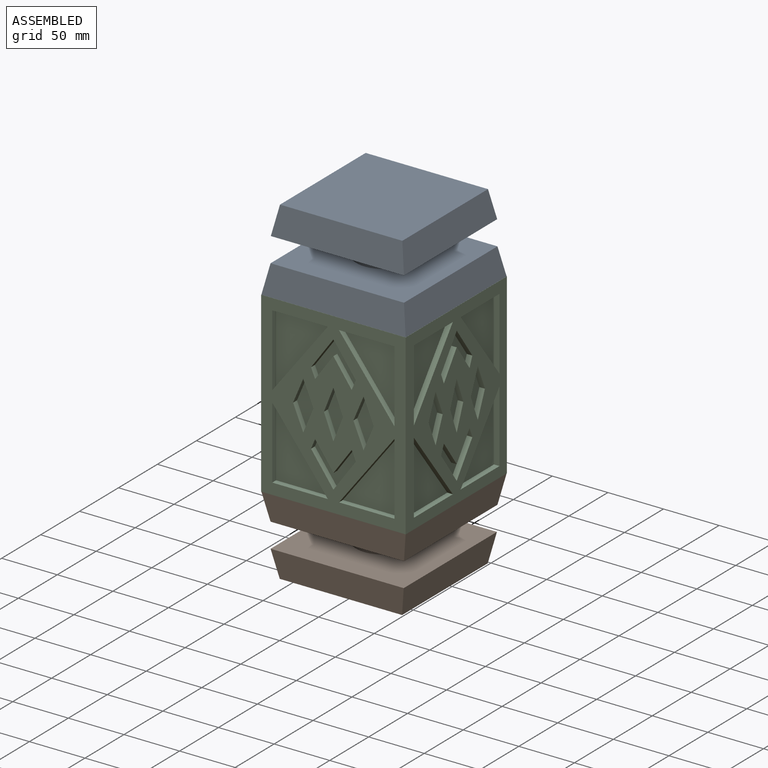
[diagram: assembled view]
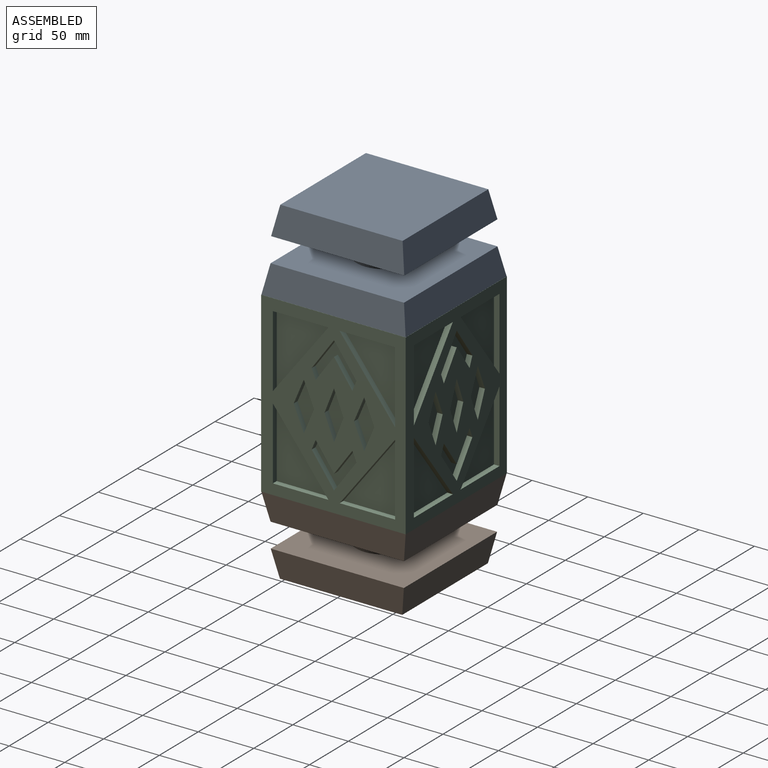
[diagram: assembled view, second angle]
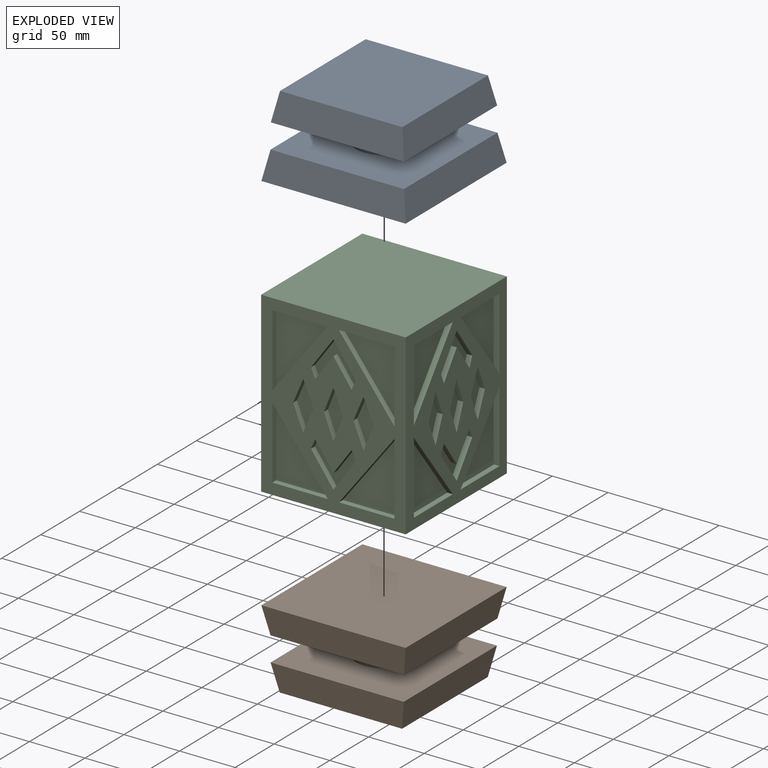
[diagram: exploded view]
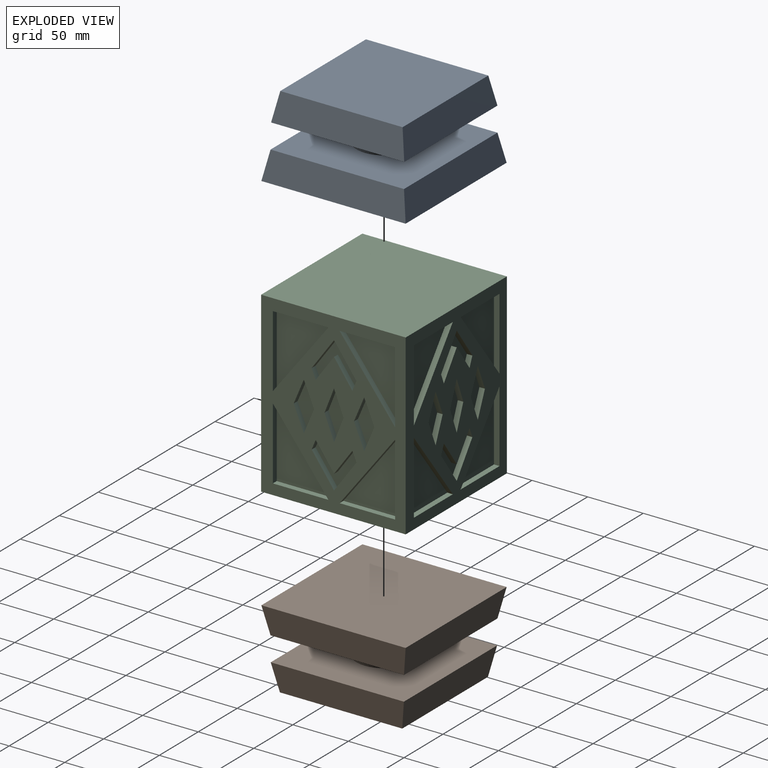
[diagram: exploded view, second angle]
ASSEMBLY  parts=3 mates=2
PART A: 13 faces, bbox 129.7x129.7x72 mm
  f0: plane 119.72x25mm, normal (-0.98,0,-0.19), area 2925.2mm2, adj f1,f3,f4,f5
  f1: plane 119.72x25mm, normal (0,-0.98,-0.19), area 2925.2mm2, adj f0,f2,f4,f5
  f2: plane 119.72x25mm, normal (0.98,0,-0.19), area 2925.2mm2, adj f1,f3,f4,f5
  f3: plane 119.72x25mm, normal (0,0.98,-0.19), area 2925.2mm2, adj f0,f2,f4,f5
  f4: plane 119.72x119.72mm, normal (0,0,1), area 12369.1mm2, adj f0,f1,f2,f3,f6
  f5: plane 110x110mm, normal (0,0,-1), area 12100mm2, adj f0,f1,f2,f3
  f6: cylinder r=25mm len=50mm, axis (0,0,-1), area 3455.8mm2, adj f4,f12
  f7: plane 129.72x25mm, normal (-0.98,0,-0.19), area 3179.9mm2, adj f8,f10,f11,f12
  f8: plane 129.72x25mm, normal (0,-0.98,-0.19), area 3179.9mm2, adj f7,f9,f11,f12
  f9: plane 129.72x25mm, normal (0.98,0,-0.19), area 3179.9mm2, adj f8,f10,f11,f12
  f10: plane 129.72x25mm, normal (0,0.98,-0.19), area 3179.9mm2, adj f7,f9,f11,f12
  f11: plane 129.72x129.72mm, normal (0,0,1), area 16827mm2, adj f7,f8,f9,f10
  f12: plane 120x120mm, normal (0,0,-1), area 12436.5mm2, adj f6,f7,f8,f9,f10
PART B: same geometry as A
PART C: 186 faces, bbox 130x130x160 mm
  f0: plane 160x130mm, normal (-1,0,0), area 12131.6mm2, adj f1,f3,f4,f5,f141,f142,f143,f145
  f1: plane 160x130mm, normal (0,1,0), area 12131.6mm2, adj f0,f2,f4,f5,f96,f97,f98,f100
  f2: plane 160x130mm, normal (1,0,0), area 12131.6mm2, adj f1,f3,f4,f5,f51,f52,f53,f54
  f3: plane 160x130mm, normal (0,-1,0), area 12131.6mm2, adj f0,f2,f4,f5,f6,f7,f8,f9
  f4: plane 130x130mm, normal (0,0,1), area 16900mm2, adj f0,f1,f2,f3
  f5: plane 130x130mm, normal (0,0,-1), area 16900mm2, adj f0,f1,f2,f3
  f6: plane 8.75x5mm, normal (-0.92,0,0.38), area 47.3mm2, adj f3,f7,f11,f12
  f7: plane 27.9x20.1mm, normal (-0.81,0,-0.58), area 171.9mm2, adj f3,f6,f8,f12
  f8: plane 27.9x20.1mm, normal (0.81,0,-0.58), area 171.9mm2, adj f3,f7,f9,f12
  f9: plane 8.75x5mm, normal (0.92,0,0.38), area 47.3mm2, adj f3,f8,f10,f12
  f10: plane 23.07x16.48mm, normal (-0.81,0,0.58), area 141.8mm2, adj f3,f9,f11,f12
  f11: plane 23.07x16.48mm, normal (0.81,0,0.58), area 141.8mm2, adj f3,f6,f10,f12
  f12: plane 40.2x36.64mm, normal (0,-1,0), area 500.4mm2, adj f6,f7,f8,f9,f10,f11
  f13: plane 21.84x9.12mm, normal (0.92,0,0.39), area 118.3mm2, adj f3,f14,f16,f17
  f14: plane 21.84x9.12mm, normal (-0.92,0,0.39), area 118.3mm2, adj f3,f13,f15,f17
  f15: plane 21.84x9.12mm, normal (-0.92,0,-0.39), area 118.3mm2, adj f3,f14,f16,f17
  f16: plane 21.84x9.12mm, normal (0.92,0,-0.39), area 118.3mm2, adj f3,f13,f15,f17
  f17: plane 43.67x18.25mm, normal (0,-1,0), area 398.4mm2, adj f13,f14,f15,f16
  f18: plane 65x5mm, normal (-1,0,0), area 325mm2, adj f3,f19,f20,f21
  f19: plane 50x5mm, normal (0,0,-1), area 250mm2, adj f3,f18,f20,f21
  f20: plane 65x50mm, normal (0.79,0,0.61), area 410mm2, adj f3,f18,f19,f21
  f21: plane 65x50mm, normal (0,-1,0), area 1625mm2, adj f18,f19,f20
  f22: plane 21.84x8.49mm, normal (-0.93,0,0.36), area 117.1mm2, adj f3,f23,f25,f26
  f23: plane 21.84x8.49mm, normal (-0.93,0,-0.36), area 117.1mm2, adj f3,f22,f24,f26
  f24: plane 21.84x8.49mm, normal (0.93,0,-0.36), area 117.1mm2, adj f3,f23,f25,f26
  f25: plane 21.84x8.49mm, normal (0.93,0,0.36), area 117.1mm2, adj f3,f22,f24,f26
  f26: plane 43.67x16.98mm, normal (0,-1,0), area 370.7mm2, adj f22,f23,f24,f25
  f27: plane 21.84x9.12mm, normal (-0.92,0,-0.39), area 118.3mm2, adj f3,f28,f30,f31
  f28: plane 21.84x9.12mm, normal (0.92,0,-0.39), area 118.3mm2, adj f3,f27,f29,f31
  f29: plane 21.84x9.12mm, normal (0.92,0,0.39), area 118.3mm2, adj f3,f28,f30,f31
  f30: plane 21.84x9.12mm, normal (-0.92,0,0.39), area 118.3mm2, adj f3,f27,f29,f31
  f31: plane 43.67x18.25mm, normal (0,-1,0), area 398.4mm2, adj f27,f28,f29,f30
  f32: plane 50x5mm, normal (0,0,1), area 250mm2, adj f3,f33,f34,f35
  f33: plane 65x5mm, normal (-1,0,0), area 325mm2, adj f3,f32,f34,f35
  f34: plane 65x50mm, normal (0.79,0,-0.61), area 410mm2, adj f3,f32,f33,f35
  f35: plane 65x50mm, normal (0,-1,0), area 1625mm2, adj f32,f33,f34
  f36: plane 27.9x20.1mm, normal (0.81,0,0.58), area 171.9mm2, adj f3,f37,f41,f42
  f37: plane 27.9x20.1mm, normal (-0.81,0,0.58), area 171.9mm2, adj f3,f36,f38,f42
  f38: plane 8.75x5mm, normal (-0.92,0,-0.38), area 47.3mm2, adj f3,f37,f39,f42
  f39: plane 23.07x16.48mm, normal (0.81,0,-0.58), area 141.8mm2, adj f3,f38,f40,f42
  f40: plane 23.07x16.48mm, normal (-0.81,0,-0.58), area 141.8mm2, adj f3,f39,f41,f42
  f41: plane 8.75x5mm, normal (0.92,0,-0.38), area 47.3mm2, adj f3,f36,f40,f42
  f42: plane 40.2x36.64mm, normal (0,-1,0), area 500.4mm2, adj f36,f37,f38,f39,f40,f41
  f43: plane 65x5mm, normal (1,0,0), area 325mm2, adj f3,f44,f45,f46
  f44: plane 50x5mm, normal (0,0,1), area 250mm2, adj f3,f43,f45,f46
  f45: plane 65x50mm, normal (-0.79,0,-0.61), area 410mm2, adj f3,f43,f44,f46
  f46: plane 65x50mm, normal (0,-1,0), area 1625mm2, adj f43,f44,f45
  f47: plane 50x5mm, normal (0,0,-1), area 250mm2, adj f3,f48,f49,f50
  f48: plane 65x5mm, normal (1,0,0), area 325mm2, adj f3,f47,f49,f50
  f49: plane 65x50mm, normal (-0.79,0,0.61), area 410mm2, adj f3,f47,f48,f50
  f50: plane 65x50mm, normal (0,-1,0), area 1625mm2, adj f47,f48,f49
  f51: plane 8.75x5mm, normal (0,-0.92,0.38), area 47.3mm2, adj f2,f52,f56,f57
  f52: plane 27.9x20.1mm, normal (0,-0.81,-0.58), area 171.9mm2, adj f2,f51,f53,f57
  f53: plane 27.9x20.1mm, normal (0,0.81,-0.58), area 171.9mm2, adj f2,f52,f54,f57
  f54: plane 8.75x5mm, normal (0,0.92,0.38), area 47.3mm2, adj f2,f53,f55,f57
  f55: plane 23.07x16.48mm, normal (0,-0.81,0.58), area 141.8mm2, adj f2,f54,f56,f57
  f56: plane 23.07x16.48mm, normal (0,0.81,0.58), area 141.8mm2, adj f2,f51,f55,f57
  f57: plane 40.2x36.64mm, normal (1,0,0), area 500.4mm2, adj f51,f52,f53,f54,f55,f56
  f58: plane 50x5mm, normal (0,0,-1), area 250mm2, adj f2,f59,f60,f61
  f59: plane 65x5mm, normal (0,1,0), area 325mm2, adj f2,f58,f60,f61
  f60: plane 65x50mm, normal (0,-0.79,0.61), area 410mm2, adj f2,f58,f59,f61
  f61: plane 65x50mm, normal (1,0,0), area 1625mm2, adj f58,f59,f60
  f62: plane 65x5mm, normal (0,-1,0), area 325mm2, adj f2,f63,f64,f65
  f63: plane 50x5mm, normal (0,0,-1), area 250mm2, adj f2,f62,f64,f65
  f64: plane 65x50mm, normal (0,0.79,0.61), area 410mm2, adj f2,f62,f63,f65
  f65: plane 65x50mm, normal (1,0,0), area 1625mm2, adj f62,f63,f64
  f66: plane 50x5mm, normal (0,0,1), area 250mm2, adj f2,f67,f68,f69
  f67: plane 65x5mm, normal (0,-1,0), area 325mm2, adj f2,f66,f68,f69
  f68: plane 65x50mm, normal (0,0.79,-0.61), area 410mm2, adj f2,f66,f67,f69
  f69: plane 65x50mm, normal (1,0,0), area 1625mm2, adj f66,f67,f68
  f70: plane 65x5mm, normal (0,1,0), area 325mm2, adj f2,f71,f72,f73
  f71: plane 50x5mm, normal (0,0,1), area 250mm2, adj f2,f70,f72,f73
  f72: plane 65x50mm, normal (0,-0.79,-0.61), area 410mm2, adj f2,f70,f71,f73
  f73: plane 65x50mm, normal (1,0,0), area 1625mm2, adj f70,f71,f72
  f74: plane 21.84x9.12mm, normal (0,0.92,-0.39), area 118.3mm2, adj f2,f75,f77,f78
  f75: plane 21.84x9.12mm, normal (0,0.92,0.39), area 118.3mm2, adj f2,f74,f76,f78
  f76: plane 21.84x9.12mm, normal (0,-0.92,0.39), area 118.3mm2, adj f2,f75,f77,f78
  f77: plane 21.84x9.12mm, normal (0,-0.92,-0.39), area 118.3mm2, adj f2,f74,f76,f78
  f78: plane 43.67x18.25mm, normal (1,0,0), area 398.4mm2, adj f74,f75,f76,f77
  f79: plane 21.84x8.49mm, normal (0,0.93,0.36), area 117.1mm2, adj f2,f80,f82,f83
  f80: plane 21.84x8.49mm, normal (0,-0.93,0.36), area 117.1mm2, adj f2,f79,f81,f83
  f81: plane 21.84x8.49mm, normal (0,-0.93,-0.36), area 117.1mm2, adj f2,f80,f82,f83
  f82: plane 21.84x8.49mm, normal (0,0.93,-0.36), area 117.1mm2, adj f2,f79,f81,f83
  f83: plane 43.67x16.98mm, normal (1,0,0), area 370.7mm2, adj f79,f80,f81,f82
  f84: plane 21.84x9.12mm, normal (0,-0.92,-0.39), area 118.3mm2, adj f2,f85,f87,f88
  f85: plane 21.84x9.12mm, normal (0,0.92,-0.39), area 118.3mm2, adj f2,f84,f86,f88
  f86: plane 21.84x9.12mm, normal (0,0.92,0.39), area 118.3mm2, adj f2,f85,f87,f88
  f87: plane 21.84x9.12mm, normal (0,-0.92,0.39), area 118.3mm2, adj f2,f84,f86,f88
  f88: plane 43.67x18.25mm, normal (1,0,0), area 398.4mm2, adj f84,f85,f86,f87
  f89: plane 27.9x20.1mm, normal (0,0.81,0.58), area 171.9mm2, adj f2,f90,f94,f95
  f90: plane 27.9x20.1mm, normal (0,-0.81,0.58), area 171.9mm2, adj f2,f89,f91,f95
  f91: plane 8.75x5mm, normal (0,-0.92,-0.38), area 47.3mm2, adj f2,f90,f92,f95
  f92: plane 23.07x16.48mm, normal (0,0.81,-0.58), area 141.8mm2, adj f2,f91,f93,f95
  f93: plane 23.07x16.48mm, normal (0,-0.81,-0.58), area 141.8mm2, adj f2,f92,f94,f95
  f94: plane 8.75x5mm, normal (0,0.92,-0.38), area 47.3mm2, adj f2,f89,f93,f95
  f95: plane 40.2x36.64mm, normal (1,0,0), area 500.4mm2, adj f89,f90,f91,f92,f93,f94
  f96: plane 50x5mm, normal (0,0,-1), area 250mm2, adj f1,f97,f98,f99
  f97: plane 65x5mm, normal (-1,0,0), area 325mm2, adj f1,f96,f98,f99
  f98: plane 65x50mm, normal (0.79,0,0.61), area 410mm2, adj f1,f96,f97,f99
  f99: plane 65x50mm, normal (0,1,0), area 1625mm2, adj f96,f97,f98
  f100: plane 21.84x9.12mm, normal (0.92,0,-0.39), area 118.3mm2, adj f1,f101,f103,f104
  f101: plane 21.84x9.12mm, normal (-0.92,0,-0.39), area 118.3mm2, adj f1,f100,f102,f104
  f102: plane 21.84x9.12mm, normal (-0.92,0,0.39), area 118.3mm2, adj f1,f101,f103,f104
  f103: plane 21.84x9.12mm, normal (0.92,0,0.39), area 118.3mm2, adj f1,f100,f102,f104
  f104: plane 43.67x18.25mm, normal (0,1,0), area 398.4mm2, adj f100,f101,f102,f103
  f105: plane 27.9x20.1mm, normal (-0.81,0,0.58), area 171.9mm2, adj f1,f106,f110,f111
  f106: plane 27.9x20.1mm, normal (0.81,0,0.58), area 171.9mm2, adj f1,f105,f107,f111
  f107: plane 8.75x5mm, normal (0.92,0,-0.38), area 47.3mm2, adj f1,f106,f108,f111
  f108: plane 23.07x16.48mm, normal (-0.81,0,-0.58), area 141.8mm2, adj f1,f107,f109,f111
  f109: plane 23.07x16.48mm, normal (0.81,0,-0.58), area 141.8mm2, adj f1,f108,f110,f111
  f110: plane 8.75x5mm, normal (-0.92,0,-0.38), area 47.3mm2, adj f1,f105,f109,f111
  f111: plane 40.2x36.64mm, normal (0,1,0), area 500.4mm2, adj f105,f106,f107,f108,f109,f110
  f112: plane 65x5mm, normal (-1,0,0), area 325mm2, adj f1,f113,f114,f115
  f113: plane 50x5mm, normal (0,0,1), area 250mm2, adj f1,f112,f114,f115
  f114: plane 65x50mm, normal (0.79,0,-0.61), area 410mm2, adj f1,f112,f113,f115
  f115: plane 65x50mm, normal (0,1,0), area 1625mm2, adj f112,f113,f114
  f116: plane 50x5mm, normal (0,0,1), area 250mm2, adj f1,f117,f118,f119
  f117: plane 65x5mm, normal (1,0,0), area 325mm2, adj f1,f116,f118,f119
  f118: plane 65x50mm, normal (-0.79,0,-0.61), area 410mm2, adj f1,f116,f117,f119
  f119: plane 65x50mm, normal (0,1,0), area 1625mm2, adj f116,f117,f118
  f120: plane 8.75x5mm, normal (0.92,0,0.38), area 47.3mm2, adj f1,f121,f125,f126
  f121: plane 27.9x20.1mm, normal (0.81,0,-0.58), area 171.9mm2, adj f1,f120,f122,f126
  f122: plane 27.9x20.1mm, normal (-0.81,0,-0.58), area 171.9mm2, adj f1,f121,f123,f126
  f123: plane 8.75x5mm, normal (-0.92,0,0.38), area 47.3mm2, adj f1,f122,f124,f126
  f124: plane 23.07x16.48mm, normal (0.81,0,0.58), area 141.8mm2, adj f1,f123,f125,f126
  f125: plane 23.07x16.48mm, normal (-0.81,0,0.58), area 141.8mm2, adj f1,f120,f124,f126
  f126: plane 40.2x36.64mm, normal (0,1,0), area 500.4mm2, adj f120,f121,f122,f123,f124,f125
  f127: plane 65x5mm, normal (1,0,0), area 325mm2, adj f1,f128,f129,f130
  f128: plane 50x5mm, normal (0,0,-1), area 250mm2, adj f1,f127,f129,f130
  f129: plane 65x50mm, normal (-0.79,0,0.61), area 410mm2, adj f1,f127,f128,f130
  f130: plane 65x50mm, normal (0,1,0), area 1625mm2, adj f127,f128,f129
  f131: plane 21.84x9.12mm, normal (-0.92,0,0.39), area 118.3mm2, adj f1,f132,f134,f135
  f132: plane 21.84x9.12mm, normal (0.92,0,0.39), area 118.3mm2, adj f1,f131,f133,f135
  f133: plane 21.84x9.12mm, normal (0.92,0,-0.39), area 118.3mm2, adj f1,f132,f134,f135
  f134: plane 21.84x9.12mm, normal (-0.92,0,-0.39), area 118.3mm2, adj f1,f131,f133,f135
  f135: plane 43.67x18.25mm, normal (0,1,0), area 398.4mm2, adj f131,f132,f133,f134
  f136: plane 21.84x8.49mm, normal (-0.93,0,0.36), area 117.1mm2, adj f1,f137,f139,f140
  f137: plane 21.84x8.49mm, normal (0.93,0,0.36), area 117.1mm2, adj f1,f136,f138,f140
  f138: plane 21.84x8.49mm, normal (0.93,0,-0.36), area 117.1mm2, adj f1,f137,f139,f140
  f139: plane 21.84x8.49mm, normal (-0.93,0,-0.36), area 117.1mm2, adj f1,f136,f138,f140
  f140: plane 43.67x16.98mm, normal (0,1,0), area 370.7mm2, adj f136,f137,f138,f139
  f141: plane 65x5mm, normal (0,1,0), area 325mm2, adj f0,f142,f143,f144
  f142: plane 50x5mm, normal (0,0,-1), area 250mm2, adj f0,f141,f143,f144
  f143: plane 65x50mm, normal (0,-0.79,0.61), area 410mm2, adj f0,f141,f142,f144
  f144: plane 65x50mm, normal (-1,0,0), area 1625mm2, adj f141,f142,f143
  f145: plane 21.84x9.12mm, normal (0,0.92,-0.39), area 118.3mm2, adj f0,f146,f148,f149
  f146: plane 21.84x9.12mm, normal (0,-0.92,-0.39), area 118.3mm2, adj f0,f145,f147,f149
  f147: plane 21.84x9.12mm, normal (0,-0.92,0.39), area 118.3mm2, adj f0,f146,f148,f149
  f148: plane 21.84x9.12mm, normal (0,0.92,0.39), area 118.3mm2, adj f0,f145,f147,f149
  f149: plane 43.67x18.25mm, normal (-1,0,0), area 398.4mm2, adj f145,f146,f147,f148
  f150: plane 27.9x20.1mm, normal (0,-0.81,0.58), area 171.9mm2, adj f0,f151,f155,f156
  f151: plane 27.9x20.1mm, normal (0,0.81,0.58), area 171.9mm2, adj f0,f150,f152,f156
  f152: plane 8.75x5mm, normal (0,0.92,-0.38), area 47.3mm2, adj f0,f151,f153,f156
  f153: plane 23.07x16.48mm, normal (0,-0.81,-0.58), area 141.8mm2, adj f0,f152,f154,f156
  f154: plane 23.07x16.48mm, normal (0,0.81,-0.58), area 141.8mm2, adj f0,f153,f155,f156
  f155: plane 8.75x5mm, normal (0,-0.92,-0.38), area 47.3mm2, adj f0,f150,f154,f156
  f156: plane 40.2x36.64mm, normal (-1,0,0), area 500.4mm2, adj f150,f151,f152,f153,f154,f155
  f157: plane 50x5mm, normal (0,0,1), area 250mm2, adj f0,f158,f159,f160
  f158: plane 65x5mm, normal (0,1,0), area 325mm2, adj f0,f157,f159,f160
  f159: plane 65x50mm, normal (0,-0.79,-0.61), area 410mm2, adj f0,f157,f158,f160
  f160: plane 65x50mm, normal (-1,0,0), area 1625mm2, adj f157,f158,f159
  f161: plane 65x5mm, normal (0,-1,0), area 325mm2, adj f0,f162,f163,f164
  f162: plane 50x5mm, normal (0,0,1), area 250mm2, adj f0,f161,f163,f164
  f163: plane 65x50mm, normal (0,0.79,-0.61), area 410mm2, adj f0,f161,f162,f164
  f164: plane 65x50mm, normal (-1,0,0), area 1625mm2, adj f161,f162,f163
  f165: plane 50x5mm, normal (0,0,-1), area 250mm2, adj f0,f166,f167,f168
  f166: plane 65x5mm, normal (0,-1,0), area 325mm2, adj f0,f165,f167,f168
  f167: plane 65x50mm, normal (0,0.79,0.61), area 410mm2, adj f0,f165,f166,f168
  f168: plane 65x50mm, normal (-1,0,0), area 1625mm2, adj f165,f166,f167
  f169: plane 8.75x5mm, normal (0,0.92,0.38), area 47.3mm2, adj f0,f170,f174,f175
  f170: plane 27.9x20.1mm, normal (0,0.81,-0.58), area 171.9mm2, adj f0,f169,f171,f175
  f171: plane 27.9x20.1mm, normal (0,-0.81,-0.58), area 171.9mm2, adj f0,f170,f172,f175
  f172: plane 8.75x5mm, normal (0,-0.92,0.38), area 47.3mm2, adj f0,f171,f173,f175
  f173: plane 23.07x16.48mm, normal (0,0.81,0.58), area 141.8mm2, adj f0,f172,f174,f175
  f174: plane 23.07x16.48mm, normal (0,-0.81,0.58), area 141.8mm2, adj f0,f169,f173,f175
  f175: plane 40.2x36.64mm, normal (-1,0,0), area 500.4mm2, adj f169,f170,f171,f172,f173,f174
  f176: plane 21.84x9.12mm, normal (0,-0.92,-0.39), area 118.3mm2, adj f0,f177,f179,f180
  f177: plane 21.84x9.12mm, normal (0,-0.92,0.39), area 118.3mm2, adj f0,f176,f178,f180
  f178: plane 21.84x9.12mm, normal (0,0.92,0.39), area 118.3mm2, adj f0,f177,f179,f180
  f179: plane 21.84x9.12mm, normal (0,0.92,-0.39), area 118.3mm2, adj f0,f176,f178,f180
  f180: plane 43.67x18.25mm, normal (-1,0,0), area 398.4mm2, adj f176,f177,f178,f179
  f181: plane 21.84x8.49mm, normal (0,-0.93,0.36), area 117.1mm2, adj f0,f182,f184,f185
  f182: plane 21.84x8.49mm, normal (0,0.93,0.36), area 117.1mm2, adj f0,f181,f183,f185
  f183: plane 21.84x8.49mm, normal (0,0.93,-0.36), area 117.1mm2, adj f0,f182,f184,f185
  f184: plane 21.84x8.49mm, normal (0,-0.93,-0.36), area 117.1mm2, adj f0,f181,f183,f185
  f185: plane 43.67x16.98mm, normal (-1,0,0), area 370.7mm2, adj f181,f182,f183,f184
PLACE A rot(axis=(1,0,0),180deg) t=(158.57,226.77,224.36)mm
PLACE B t=(158.57,116.45,-79.64)mm
PLACE C t=(148.69,106.61,-7.64)mm
MATE planar A.f11 <-> C.f4  axis (0,0,-1) through (213.69,171.61,152.36)mm
MATE planar B.f11 <-> C.f5  axis (0,0,1) through (213.69,171.61,-7.64)mm
